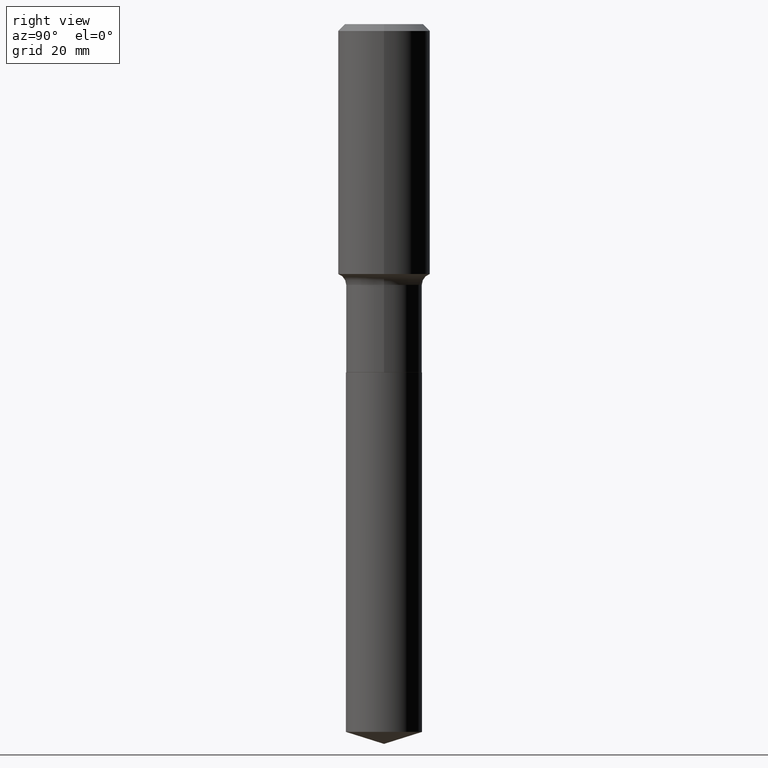
[diagram: clean part render]
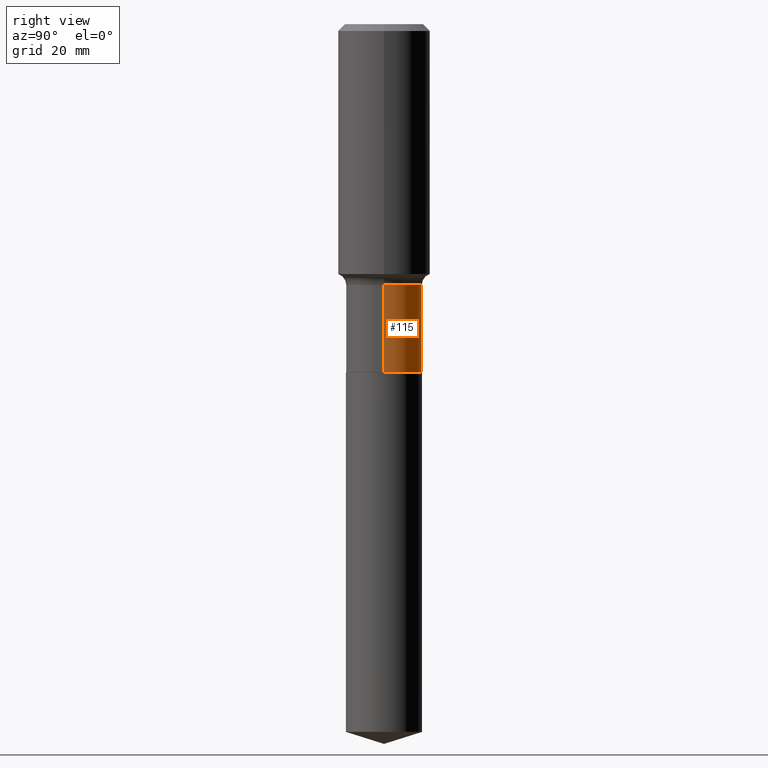
[diagram: same view with one face highlighted and labeled with its STEP entity id]
A machine part, right view. The second image highlights one B-rep face of the part: STEP entity #115.
In plain terms, the highlighted cylindrical surface (partial cylindrical patch) has radius 6.5481 mm, axis along (-0, 0, 1).
Its self-contained STEP definition (entity closure, byte-faithful):
#20 = VERTEX_POINT ( 'NONE', #185 ) ;
#29 = AXIS2_PLACEMENT_3D ( 'NONE', #235, #45, #318 ) ;
#43 = VERTEX_POINT ( 'NONE', #148 ) ;
#45 = DIRECTION ( 'NONE',  ( -2.445468806185136597E-29, 3.491481338843145583E-15, 1.000000000000000000 ) ) ;
#62 = VECTOR ( 'NONE', #349, 39.37007874015748143 ) ;
#67 = ORIENTED_EDGE ( 'NONE', *, *, #214, .T. ) ;
#70 = EDGE_CURVE ( 'NONE', #43, #290, #371, .T. ) ;
#87 = CARTESIAN_POINT ( 'NONE',  ( 5.768616366910118833E-29, -8.236055330197096914E-15, -2.358900000000000219 ) ) ;
#114 = CARTESIAN_POINT ( 'NONE',  ( 0.2577999999999999181, -7.967909563373935033E-15, -1.766499999999999959 ) ) ;
#115 = ADVANCED_FACE ( 'NONE', ( #492 ), #150, .T. ) ;
#131 = ORIENTED_EDGE ( 'NONE', *, *, #445, .T. ) ;
#132 = AXIS2_PLACEMENT_3D ( 'NONE', #87, #243, #462 ) ;
#148 = CARTESIAN_POINT ( 'NONE',  ( 0.2577999999999999736, -1.003626310850461608E-14, -2.358900000000000219 ) ) ;
#150 = CYLINDRICAL_SURFACE ( 'NONE', #208, 0.2577999999999999181 ) ;
#166 = ORIENTED_EDGE ( 'NONE', *, *, #70, .F. ) ;
#170 = ORIENTED_EDGE ( 'NONE', *, *, #457, .F. ) ;
#185 = CARTESIAN_POINT ( 'NONE',  ( -0.2577999999999999181, -5.370099384842219482E-15, -1.766499999999999959 ) ) ;
#201 = EDGE_LOOP ( 'NONE', ( #131, #67, #170, #166 ) ) ;
#208 = AXIS2_PLACEMENT_3D ( 'NONE', #341, #490, #221 ) ;
#212 = CARTESIAN_POINT ( 'NONE',  ( -0.2578000000000000291, -5.370099384842219482E-15, -2.358900000000000219 ) ) ;
#214 = EDGE_CURVE ( 'NONE', #397, #20, #431, .T. ) ;
#221 = DIRECTION ( 'NONE',  ( 1.000000000000000000, -6.982962677686267499E-15, 4.876176775795936353E-29 ) ) ;
#235 = CARTESIAN_POINT ( 'NONE',  ( 4.319920646126043085E-29, -6.167701785066416655E-15, -1.766499999999999959 ) ) ;
#243 = DIRECTION ( 'NONE',  ( -2.445468806185136597E-29, 3.491481338843145583E-15, 1.000000000000000000 ) ) ;
#260 = DIRECTION ( 'NONE',  ( -2.445468806185136877E-29, 3.491481338843145188E-15, 1.000000000000000000 ) ) ;
#290 = VERTEX_POINT ( 'NONE', #114 ) ;
#311 = VECTOR ( 'NONE', #260, 39.37007874015748143 ) ;
#318 = DIRECTION ( 'NONE',  ( 1.000000000000000000, -6.982962677686265922E-15, 0.000000000000000000 ) ) ;
#341 = CARTESIAN_POINT ( 'NONE',  ( 0.000000000000000000, 0.000000000000000000, 0.000000000000000000 ) ) ;
#349 = DIRECTION ( 'NONE',  ( -2.445468806185136877E-29, 3.491481338843145188E-15, 1.000000000000000000 ) ) ;
#354 = CARTESIAN_POINT ( 'NONE',  ( -0.2577999999999999181, 1.831779172789537697E-15, -1.268101466267714406E-29 ) ) ;
#357 = CIRCLE ( 'NONE', #132, 0.2577999999999999736 ) ;
#368 = CIRCLE ( 'NONE', #29, 0.2577999999999999181 ) ;
#371 = LINE ( 'NONE', #452, #311 ) ;
#397 = VERTEX_POINT ( 'NONE', #212 ) ;
#431 = LINE ( 'NONE', #354, #62 ) ;
#445 = EDGE_CURVE ( 'NONE', #43, #397, #357, .T. ) ;
#452 = CARTESIAN_POINT ( 'NONE',  ( 0.2577999999999999181, -1.800207778307519167E-15, 1.257078372800191925E-29 ) ) ;
#457 = EDGE_CURVE ( 'NONE', #290, #20, #368, .T. ) ;
#462 = DIRECTION ( 'NONE',  ( 1.000000000000000000, -6.982962677686264344E-15, 0.000000000000000000 ) ) ;
#490 = DIRECTION ( 'NONE',  ( -2.445468806185136597E-29, 3.491481338843145583E-15, 1.000000000000000000 ) ) ;
#492 = FACE_OUTER_BOUND ( 'NONE', #201, .T. ) ;